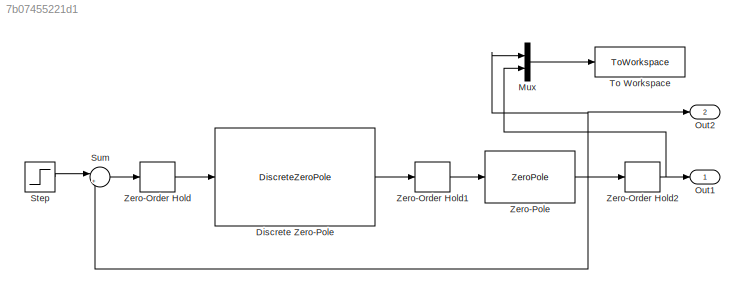
MODEL slx_7b07455221d1
KIND model
CONFIG AbsTol = auto
CONFIG EnableMultiTasking = off
CONFIG FixedStep = auto
CONFIG MaxStep = auto
CONFIG MinStep = auto
CONFIG RelTol = 1e-3
CONFIG SampleTimeConstraint = Unconstrained
CONFIG SolverName = VariableStepAuto
CONFIG StartTime = 0.0
CONFIG StopTime = 20.0
BLOCK [DiscreteZeroPole] Discrete Zero-Pole
  Gain = GainDx
  Poles = [p1]
  SampleTime = -1
  Zeros = [z1]
BLOCK [Mux] Mux
  DisplayOption = bar
  Inputs = 2
  Ports = [2, 1]
BLOCK [Outport] Out1
BLOCK [Outport] Out2
  Port = 2
BLOCK [Step] Step
  SampleTime = 0
BLOCK [Sum] Sum
  Inputs = |+-
  Ports = [2, 1]
BLOCK [ToWorkspace] To Workspace
  FixptAsFi = on
  MaxDataPoints = inf
  Ports = [1]
  SampleTime = -1
  SaveFormat = Structure With Time
  VariableName = simout
BLOCK [ZeroOrderHold] Zero-Order Hold
  SampleTime = -1
BLOCK [ZeroOrderHold] Zero-Order Hold1
  SampleTime = -1
BLOCK [ZeroOrderHold] Zero-Order Hold2
  SampleTime = -1
BLOCK [ZeroPole] Zero-Pole
  Gain = a
  Poles = [0 -1]
  Zeros = []
LINE Discrete Zero-Pole:1 -> Zero-Order Hold1:1
LINE Mux:1 -> To Workspace:1
LINE Step:1 -> Sum:1
LINE Sum:1 -> Zero-Order Hold:1
LINE Zero-Order Hold1:1 -> Zero-Pole:1
NET Zero-Order Hold2:1 -> Mux:2, Out1:1
LINE Zero-Order Hold:1 -> Discrete Zero-Pole:1
NET Zero-Pole:1 -> Mux:1, Out2:1, Sum:2, Zero-Order Hold2:1
note: NET lines group one-source signal fan-out (src -> all destinations, sorted); 1:1 wires keep LINE
